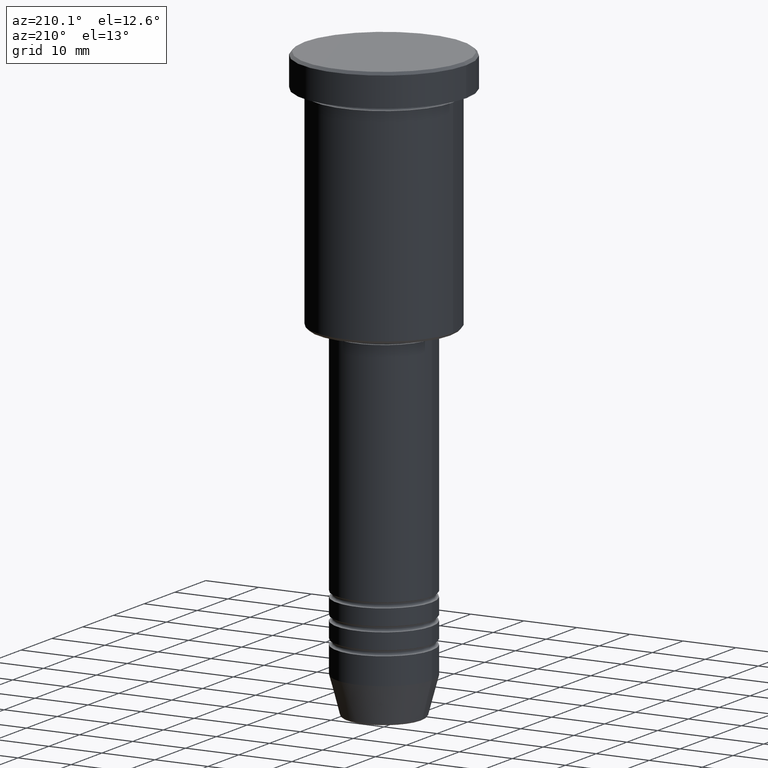
[diagram: clean part render]
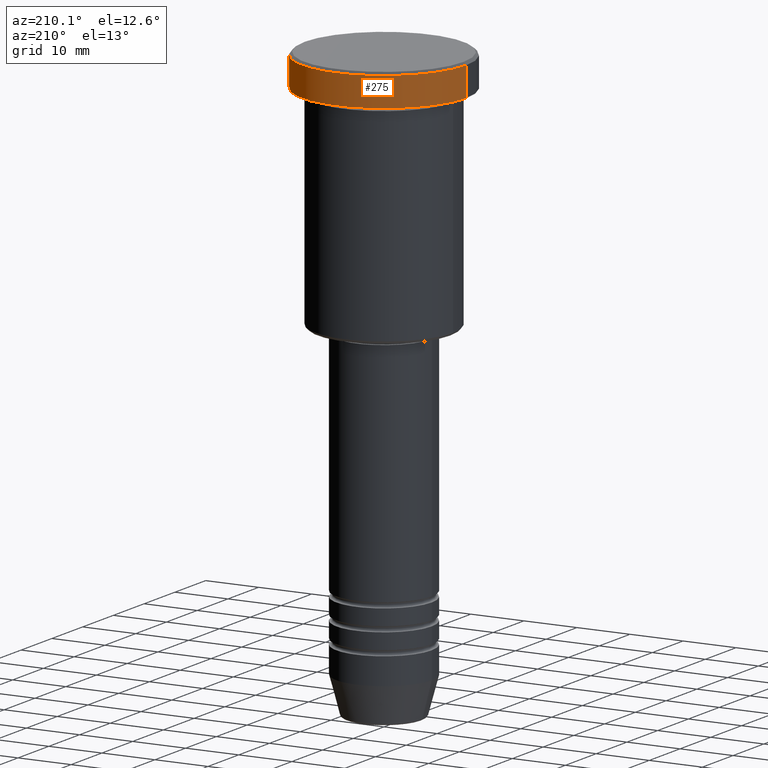
[diagram: same view with one face highlighted and labeled with its STEP entity id]
A machine part, auxiliary view. The second image highlights one B-rep face of the part: STEP entity #275.
In plain terms, the highlighted cylindrical surface (partial cylindrical patch) has radius 15.5 mm, axis along (-0, -0, 1).
Its self-contained STEP definition (entity closure, byte-faithful):
#8 = DIRECTION ( 'NONE',  ( 1.000000000000000000, 0.000000000000000000, 0.000000000000000000 ) ) ;
#21 = EDGE_CURVE ( 'NONE', #1039, #226, #1096, .T. ) ;
#43 = DIRECTION ( 'NONE',  ( 1.000000000000000000, 0.000000000000000000, 0.000000000000000000 ) ) ;
#142 = CARTESIAN_POINT ( 'NONE',  ( 15.50000000000000000, 0.000000000000000000, 0.000000000000000000 ) ) ;
#161 = CARTESIAN_POINT ( 'NONE',  ( 15.50000000000000000, 0.000000000000000000, -5.999999999999995559 ) ) ;
#166 = CARTESIAN_POINT ( 'NONE',  ( 15.50000000000000000, 0.000000000000000000, -0.4999999999999848455 ) ) ;
#187 = VERTEX_POINT ( 'NONE', #161 ) ;
#195 = EDGE_CURVE ( 'NONE', #187, #872, #342, .T. ) ;
#220 = VECTOR ( 'NONE', #1021, 1000.000000000000000 ) ;
#226 = VERTEX_POINT ( 'NONE', #166 ) ;
#266 = CARTESIAN_POINT ( 'NONE',  ( 0.000000000000000000, 0.000000000000000000, -5.999999999999995559 ) ) ;
#275 = ADVANCED_FACE ( 'NONE', ( #586 ), #412, .T. ) ;
#304 = CARTESIAN_POINT ( 'NONE',  ( -15.50000000000000000, 1.898202538678397557E-15, 0.000000000000000000 ) ) ;
#310 = ORIENTED_EDGE ( 'NONE', *, *, #1145, .F. ) ;
#321 = AXIS2_PLACEMENT_3D ( 'NONE', #345, #331, #43 ) ;
#327 = DIRECTION ( 'NONE',  ( -0.000000000000000000, -0.000000000000000000, 1.000000000000000000 ) ) ;
#331 = DIRECTION ( 'NONE',  ( -0.000000000000000000, -0.000000000000000000, 1.000000000000000000 ) ) ;
#342 = CIRCLE ( 'NONE', #992, 15.50000000000000000 ) ;
#345 = CARTESIAN_POINT ( 'NONE',  ( 0.000000000000000000, 0.000000000000000000, 0.000000000000000000 ) ) ;
#412 = CYLINDRICAL_SURFACE ( 'NONE', #321, 15.50000000000000000 ) ;
#471 = DIRECTION ( 'NONE',  ( 0.000000000000000000, 0.000000000000000000, -1.000000000000000000 ) ) ;
#474 = ORIENTED_EDGE ( 'NONE', *, *, #746, .T. ) ;
#586 = FACE_OUTER_BOUND ( 'NONE', #698, .T. ) ;
#602 = AXIS2_PLACEMENT_3D ( 'NONE', #1093, #471, #8 ) ;
#615 = DIRECTION ( 'NONE',  ( 1.000000000000000000, 0.000000000000000000, 0.000000000000000000 ) ) ;
#631 = DIRECTION ( 'NONE',  ( -0.000000000000000000, -0.000000000000000000, 1.000000000000000000 ) ) ;
#642 = ORIENTED_EDGE ( 'NONE', *, *, #21, .T. ) ;
#659 = VECTOR ( 'NONE', #327, 1000.000000000000000 ) ;
#689 = LINE ( 'NONE', #142, #659 ) ;
#698 = EDGE_LOOP ( 'NONE', ( #960, #474, #642, #310 ) ) ;
#746 = EDGE_CURVE ( 'NONE', #872, #1039, #1118, .T. ) ;
#870 = CARTESIAN_POINT ( 'NONE',  ( -15.50000000000000000, 1.898202538678397557E-15, -0.4999999999999848455 ) ) ;
#872 = VERTEX_POINT ( 'NONE', #899 ) ;
#899 = CARTESIAN_POINT ( 'NONE',  ( -15.50000000000000000, 1.898202538678397557E-15, -5.999999999999995559 ) ) ;
#960 = ORIENTED_EDGE ( 'NONE', *, *, #195, .T. ) ;
#992 = AXIS2_PLACEMENT_3D ( 'NONE', #266, #631, #615 ) ;
#1021 = DIRECTION ( 'NONE',  ( -0.000000000000000000, -0.000000000000000000, 1.000000000000000000 ) ) ;
#1039 = VERTEX_POINT ( 'NONE', #870 ) ;
#1093 = CARTESIAN_POINT ( 'NONE',  ( 0.000000000000000000, 0.000000000000000000, -0.4999999999999848455 ) ) ;
#1096 = CIRCLE ( 'NONE', #602, 15.50000000000000000 ) ;
#1118 = LINE ( 'NONE', #304, #220 ) ;
#1145 = EDGE_CURVE ( 'NONE', #187, #226, #689, .T. ) ;